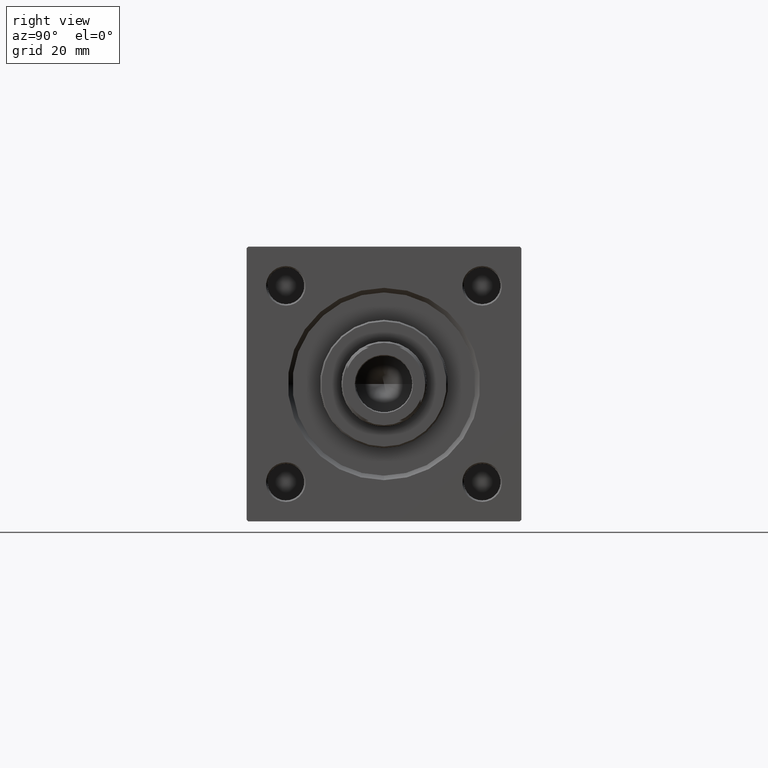
[diagram: clean part render]
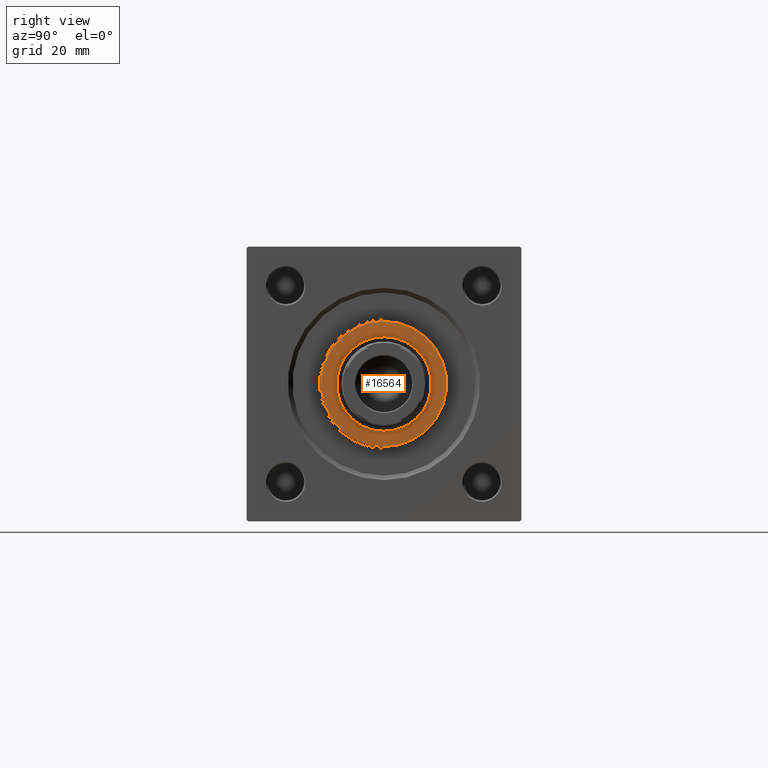
[diagram: same view with one face highlighted and labeled with its STEP entity id]
A machine part, right view. The second image highlights one B-rep face of the part: STEP entity #16564.
In plain terms, the highlighted planar face has unit normal (1, 0, 0).
Its self-contained STEP definition (entity closure, byte-faithful):
#900 = DIRECTION ( 'NONE',  ( 0.000000000000000000, 0.000000000000000000, 1.000000000000000000 ) ) ;
#1149 = DIRECTION ( 'NONE',  ( 1.000000000000000000, 0.000000000000000000, 0.000000000000000000 ) ) ;
#1298 = ORIENTED_EDGE ( 'NONE', *, *, #47455, .T. ) ;
#1683 = FACE_BOUND ( 'NONE', #13966, .T. ) ;
#1934 = FACE_OUTER_BOUND ( 'NONE', #11583, .T. ) ;
#2081 = DIRECTION ( 'NONE',  ( 1.000000000000000000, 0.000000000000000000, 0.000000000000000000 ) ) ;
#2726 = CIRCLE ( 'NONE', #10027, 20.50000000000000355 ) ;
#3531 = DIRECTION ( 'NONE',  ( 0.000000000000000000, 0.000000000000000000, 1.000000000000000000 ) ) ;
#4036 = CARTESIAN_POINT ( 'NONE',  ( 0.000000000000000000, 0.000000000000000000, 39.69999999999999574 ) ) ;
#4111 = EDGE_CURVE ( 'NONE', #35835, #47202, #16953, .T. ) ;
#4792 = AXIS2_PLACEMENT_3D ( 'NONE', #37105, #21383, #2081 ) ;
#5799 = CIRCLE ( 'NONE', #13125, 15.50000000000000000 ) ;
#6477 = PLANE ( 'NONE',  #23786 ) ;
#7856 = DIRECTION ( 'NONE',  ( 1.000000000000000000, 0.000000000000000000, 0.000000000000000000 ) ) ;
#8535 = CARTESIAN_POINT ( 'NONE',  ( 15.50000000000000000, 0.000000000000000000, 39.69999999999999574 ) ) ;
#9655 = CARTESIAN_POINT ( 'NONE',  ( 0.000000000000000000, 0.000000000000000000, 39.69999999999999574 ) ) ;
#9919 = ORIENTED_EDGE ( 'NONE', *, *, #23464, .F. ) ;
#10027 = AXIS2_PLACEMENT_3D ( 'NONE', #27559, #900, #1149 ) ;
#10138 = ORIENTED_EDGE ( 'NONE', *, *, #4111, .T. ) ;
#11583 = EDGE_LOOP ( 'NONE', ( #1298, #10138 ) ) ;
#13125 = AXIS2_PLACEMENT_3D ( 'NONE', #9655, #36550, #28451 ) ;
#13966 = EDGE_LOOP ( 'NONE', ( #26950, #9919 ) ) ;
#16564 = ADVANCED_FACE ( 'NONE', ( #1683, #1934 ), #6477, .T. ) ;
#16953 = CIRCLE ( 'NONE', #4792, 20.50000000000000355 ) ;
#17335 = CARTESIAN_POINT ( 'NONE',  ( 20.50000000000000355, 2.541142108230758269E-15, 39.69999999999999574 ) ) ;
#17665 = DIRECTION ( 'NONE',  ( 0.000000000000000000, 0.000000000000000000, 1.000000000000000000 ) ) ;
#19818 = VERTEX_POINT ( 'NONE', #43347 ) ;
#21383 = DIRECTION ( 'NONE',  ( 0.000000000000000000, 0.000000000000000000, 1.000000000000000000 ) ) ;
#23464 = EDGE_CURVE ( 'NONE', #19818, #44677, #29571, .T. ) ;
#23786 = AXIS2_PLACEMENT_3D ( 'NONE', #28865, #17665, #29355 ) ;
#26950 = ORIENTED_EDGE ( 'NONE', *, *, #38252, .F. ) ;
#27559 = CARTESIAN_POINT ( 'NONE',  ( 0.000000000000000000, 0.000000000000000000, 39.69999999999999574 ) ) ;
#28451 = DIRECTION ( 'NONE',  ( 1.000000000000000000, 0.000000000000000000, 0.000000000000000000 ) ) ;
#28865 = CARTESIAN_POINT ( 'NONE',  ( 0.000000000000000000, 0.000000000000000000, 39.69999999999999574 ) ) ;
#29355 = DIRECTION ( 'NONE',  ( 1.000000000000000000, 0.000000000000000000, -0.000000000000000000 ) ) ;
#29571 = CIRCLE ( 'NONE', #38497, 15.50000000000000000 ) ;
#35835 = VERTEX_POINT ( 'NONE', #17335 ) ;
#36550 = DIRECTION ( 'NONE',  ( 0.000000000000000000, 0.000000000000000000, 1.000000000000000000 ) ) ;
#37105 = CARTESIAN_POINT ( 'NONE',  ( 0.000000000000000000, 0.000000000000000000, 39.69999999999999574 ) ) ;
#38206 = CARTESIAN_POINT ( 'NONE',  ( -20.50000000000000355, 0.000000000000000000, 39.69999999999999574 ) ) ;
#38252 = EDGE_CURVE ( 'NONE', #44677, #19818, #5799, .T. ) ;
#38497 = AXIS2_PLACEMENT_3D ( 'NONE', #4036, #3531, #7856 ) ;
#43347 = CARTESIAN_POINT ( 'NONE',  ( -15.50000000000000000, 1.898202538678397557E-15, 39.69999999999999574 ) ) ;
#44677 = VERTEX_POINT ( 'NONE', #8535 ) ;
#47202 = VERTEX_POINT ( 'NONE', #38206 ) ;
#47455 = EDGE_CURVE ( 'NONE', #47202, #35835, #2726, .T. ) ;